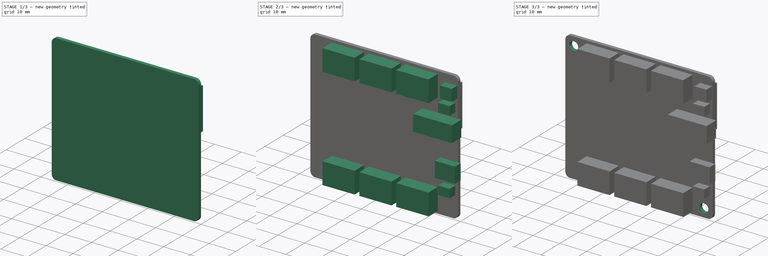
[diagram: build sequence overview — one tinted view per stage of 3, left to right]
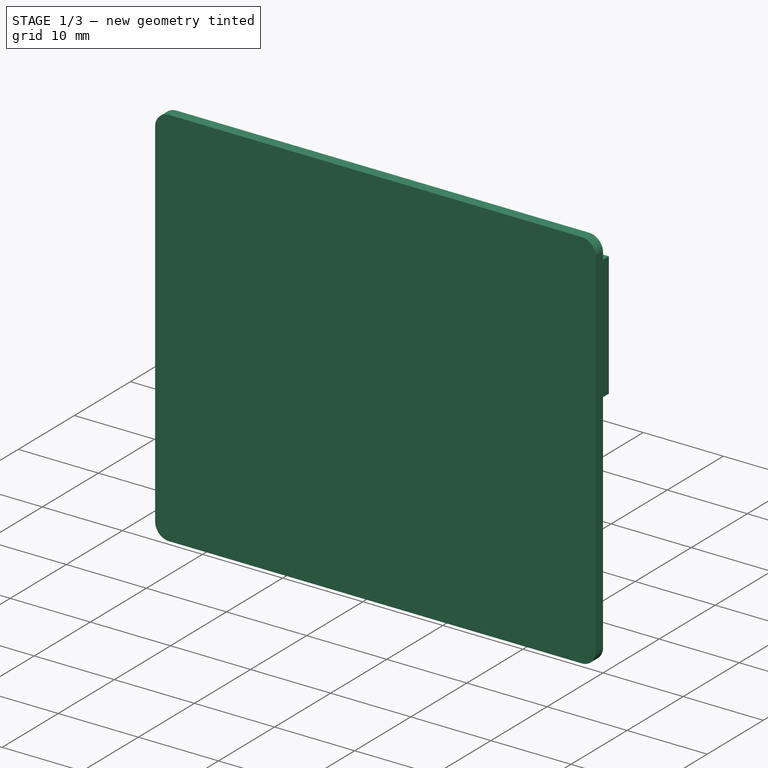
[diagram: stage 1 of 3 — iso view after this stage's code; geometry added in this stage tinted green]
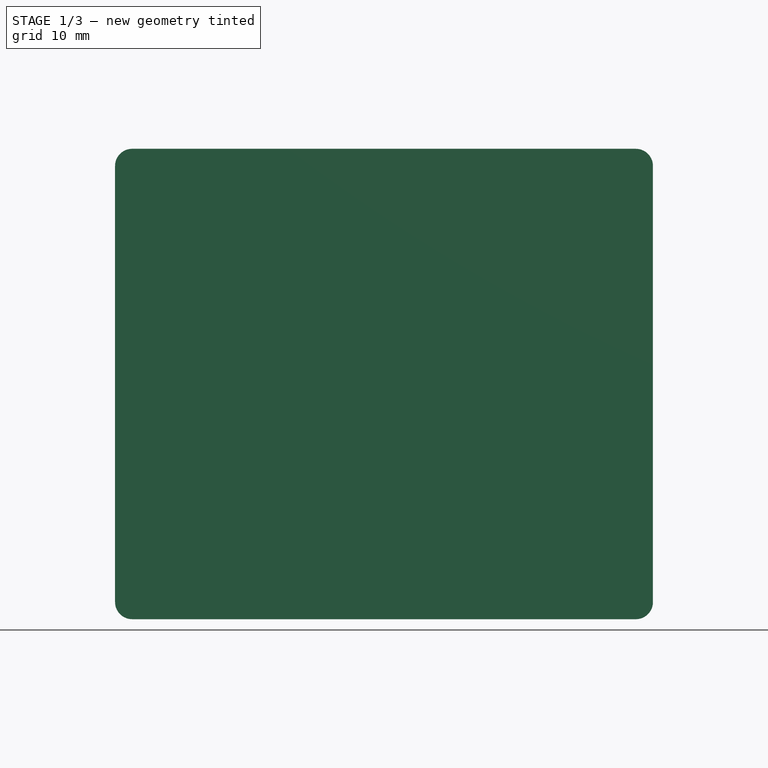
[diagram: stage 1 of 3 — front view after this stage's code; geometry added in this stage tinted green]
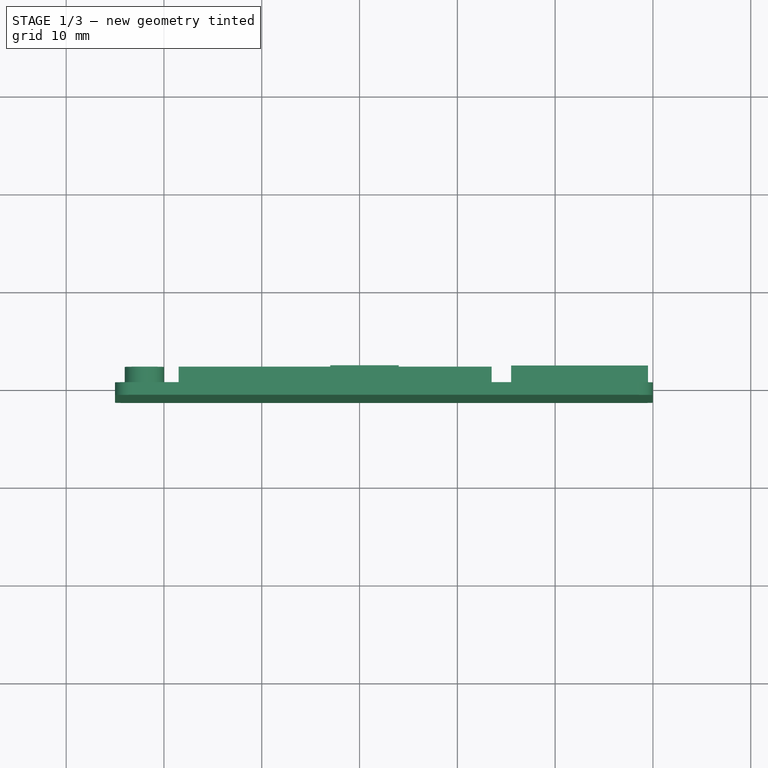
[diagram: stage 1 of 3 — top view after this stage's code; geometry added in this stage tinted green]
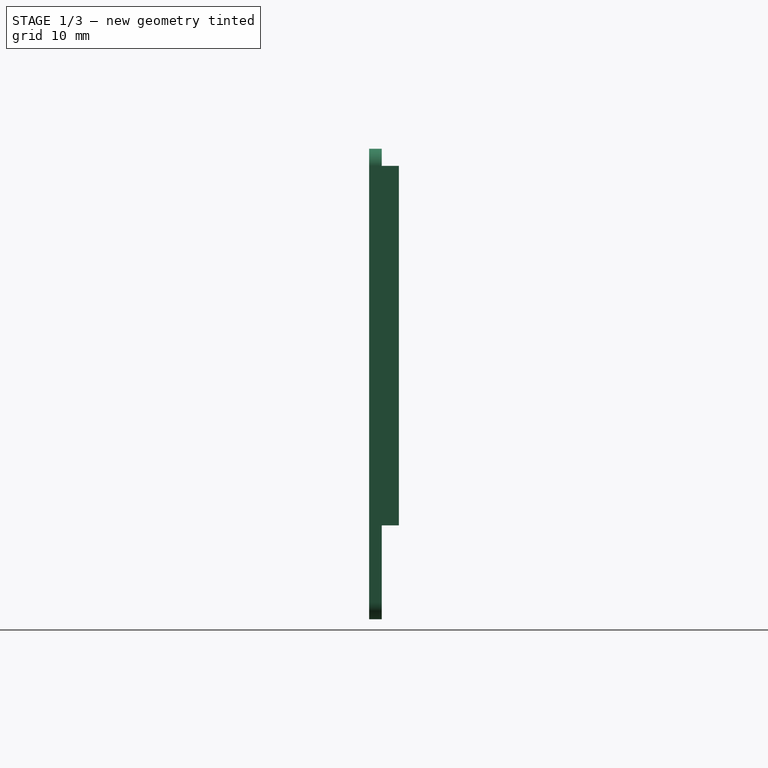
[diagram: stage 1 of 3 — right view after this stage's code; geometry added in this stage tinted green]
FCSTD DOCUMENT  (FreeCAD 0.18.1R)
Label: Wio-LTE-board
License: All rights reserved
LicenseURL: http://en.wikipedia.org/wiki/All_rights_reserved
objects: Sketcher::SketchObject×6, PartDesign::Pad×5, PartDesign::Pocket×1, PartDesign::Body×1
note: 19 computed .brp shape members not serialized (recipe doc carries the construction recipe); baked Part::Feature solids carry a one-line shape summary decoded from their .brp

FEATURE [Sketcher::SketchObject] Sketch
  MapMode = 5
  Placement = pos=(0,0,0) rot=(1,0,0;1.5708rad)
  Support = -> [XZ_Plane]
  sketch-geometry (8):
    g0: LineSegment StartX=-53.25 StartY=48.1 StartZ=0 EndX=-1.75 EndY=48.1 EndZ=0
    g1: LineSegment StartX=0 StartY=46.35 StartZ=0 EndX=0 EndY=1.75 EndZ=0
    g2: LineSegment StartX=-1.75 StartY=0 StartZ=0 EndX=-53.25 EndY=0 EndZ=0
    g3: LineSegment StartX=-55 StartY=1.75 StartZ=0 EndX=-55 EndY=46.35 EndZ=0
    g4: ArcOfCircle CenterX=-53.25 CenterY=46.35 CenterZ=0 NormalX=0 NormalY=0 NormalZ=1 AngleXU=0 Radius=1.75 StartAngle=1.5708 EndAngle=3.14159
    g5: ArcOfCircle CenterX=-1.75 CenterY=46.35 CenterZ=0 NormalX=0 NormalY=0 NormalZ=1 AngleXU=0 Radius=1.75 StartAngle=1e-15 EndAngle=1.5708
    g6: ArcOfCircle CenterX=-53.25 CenterY=1.75 CenterZ=0 NormalX=0 NormalY=0 NormalZ=1 AngleXU=0 Radius=1.75 StartAngle=3.14159 EndAngle=4.71239
    g7: ArcOfCircle CenterX=-1.75 CenterY=1.75 CenterZ=0 NormalX=0 NormalY=0 NormalZ=1 AngleXU=0 Radius=1.75 StartAngle=4.71239 EndAngle=6.28319
  constraints (20):
    c: Horizontal(g0)
    c: Horizontal(g2)
    c: Vertical(g1)
    c: Vertical(g3)
    c: Tangent(g0,g4) = 1.5708
    c: Tangent(g3,g4) = 1.5708
    c: Tangent(g0,g5) = 1.5708
    c: Tangent(g1,g5) = 1.5708
    c: Tangent(g2,g6) = 1.5708
    c: Tangent(g3,g6) = 1.5708
    c: Tangent(g1,g7) = 1.5708
    c: Tangent(g2,g7) = 1.5708
    c: Radius(g4) = 1.75
    c: Equal(g4,g5)
    c: Equal(g4,g6)
    c: Equal(g4,g7)
    c: DistanceY(g2,g0) = 48.1
    c: PointOnObject(g-1,g2)
    c: PointOnObject(g-1,g1)
    c: DistanceX(g3,g1) = 55
FEATURE [PartDesign::Pad] Pad
  Length = 1.3
  Length2 = 100
  Placement = pos=(0,0,0) rot=(1,0,0;1.5708rad)
  Profile = -> Sketch
  Type = 0
FEATURE [Sketcher::SketchObject] Sketch001
  ExternalGeometry = -> [Pad]
  MapMode = 5
  Placement = pos=(0,0,0) rot=(-1,0,0;1.5708rad)
  Support = -> [Pad]
  sketch-geometry (15):
    g0: LineSegment StartX=-16.5 StartY=-38.6 StartZ=0 EndX=-48.5 EndY=-38.6 EndZ=0
    g1: LineSegment StartX=-48.5 StartY=-38.6 StartZ=0 EndX=-48.5 EndY=-9.6 EndZ=0
    g2: LineSegment StartX=-48.5 StartY=-9.6 StartZ=0 EndX=-16.5 EndY=-9.6 EndZ=0
    g3: LineSegment StartX=-16.5 StartY=-9.6 StartZ=0 EndX=-16.5 EndY=-38.6 EndZ=0
    g4: LineSegment StartX=-25.99 StartY=-46.36 StartZ=0 EndX=-32.99 EndY=-46.36 EndZ=0
    g5: LineSegment StartX=-32.99 StartY=-46.36 StartZ=0 EndX=-32.99 EndY=-41.36 EndZ=0
    g6: LineSegment StartX=-32.99 StartY=-41.36 StartZ=0 EndX=-25.99 EndY=-41.36 EndZ=0
    g7: LineSegment StartX=-25.99 StartY=-41.36 StartZ=0 EndX=-25.99 EndY=-46.36 EndZ=0
    g8: Circle CenterX=-52 CenterY=-24.1 CenterZ=0 NormalX=0 NormalY=0 NormalZ=1 AngleXU=0 Radius=2.01169
    g9: Circle CenterX=-52 CenterY=-11.6 CenterZ=0 NormalX=0 NormalY=0 NormalZ=1 AngleXU=0 Radius=2.01169
    g10: Circle CenterX=-52 CenterY=-36.6 CenterZ=0 NormalX=0 NormalY=0 NormalZ=1 AngleXU=0 Radius=2.01169
    g11: LineSegment StartX=-0.5 StartY=-45.1 StartZ=0 EndX=-14.5 EndY=-45.1 EndZ=0
    g12: LineSegment StartX=-14.5 StartY=-45.1 StartZ=0 EndX=-14.5 EndY=-29.6 EndZ=0
    g13: LineSegment StartX=-14.5 StartY=-29.6 StartZ=0 EndX=-0.5 EndY=-29.6 EndZ=0
    g14: LineSegment StartX=-0.5 StartY=-29.6 StartZ=0 EndX=-0.5 EndY=-45.1 EndZ=0
  constraints (42):
    c: Coincident(g0,g1)
    c: Coincident(g1,g2)
    c: Coincident(g2,g3)
    c: Coincident(g3,g0)
    c: Horizontal(g0)
    c: Horizontal(g2)
    c: Vertical(g1)
    c: Vertical(g3)
    c: DistanceY(g3,g3) = 29
    c: Distance(g0) = 32
    c: DistanceY(g-3,g0) = 9.5
    c: DistanceX(g-5,g1) = 6.5
    c: Coincident(g4,g5)
    c: Coincident(g5,g6)
    c: Coincident(g6,g7)
    c: Coincident(g7,g4)
    c: Horizontal(g4)
    c: Horizontal(g6)
    c: Vertical(g5)
    c: Vertical(g7)
    c: Distance(g5) = 5
    c: Distance(g4) = 7
    c: DistanceY(g5,g0) = 2.76
    c: DistanceX(g6,g0) = 9.49
    c: DistanceX(g10,g0) = 3.5  'd1'
    c: DistanceX(g8,g0) = 3.5
    c: DistanceX(g9,g1) = 3.5
    c: DistanceY(g9,g1) = 2
    c: DistanceY(g0,g10) = 2
    c: DistanceY(g10,g8) = 12.5
    c: Coincident(g11,g12)
    c: Coincident(g12,g13)
    c: Coincident(g13,g14)
    c: Coincident(g14,g11)
    c: Horizontal(g11)
    c: Horizontal(g13)
    c: Vertical(g12)
    c: Vertical(g14)
    c: Distance(g12) = 15.5
    c: Distance(g11) = 14
    c: DistanceY(g-3,g11) = 3
    c: DistanceX(g11,g-4) = 0.5
FEATURE [PartDesign::Pad] Pad001
  BaseFeature = -> Pad
  Length = 1.75
  Length2 = 100
  Placement = pos=(0,0,0) rot=(1,0,0;1.5708rad)
  Profile = -> Sketch001
  Type = 0
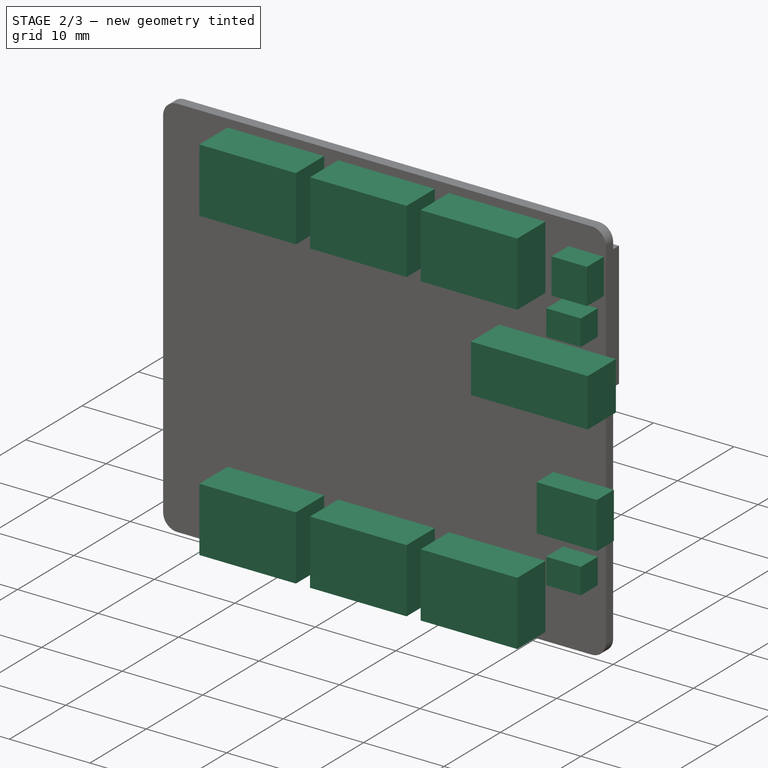
[diagram: stage 2 of 3 — iso view after this stage's code; geometry added in this stage tinted green]
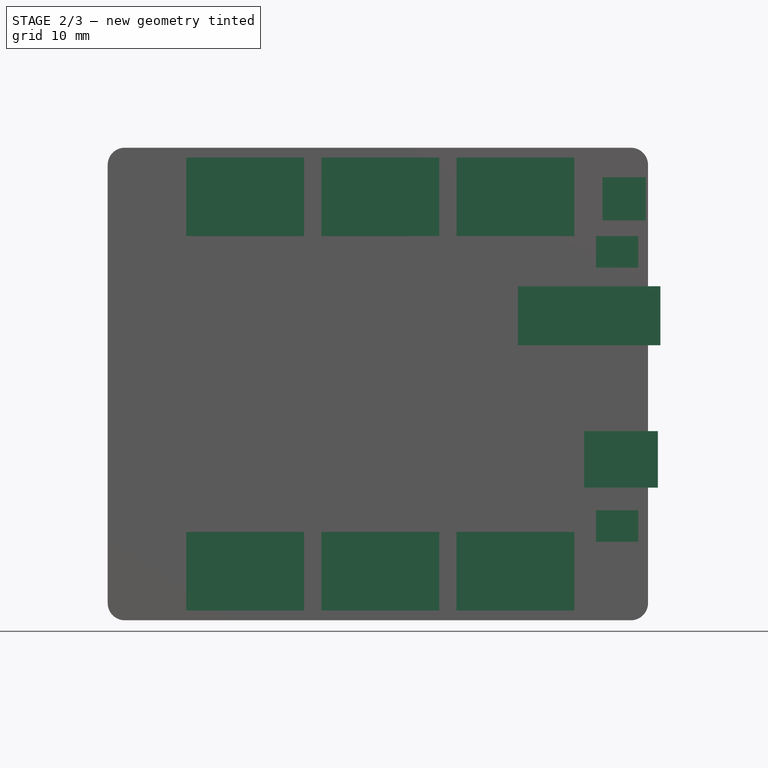
[diagram: stage 2 of 3 — front view after this stage's code; geometry added in this stage tinted green]
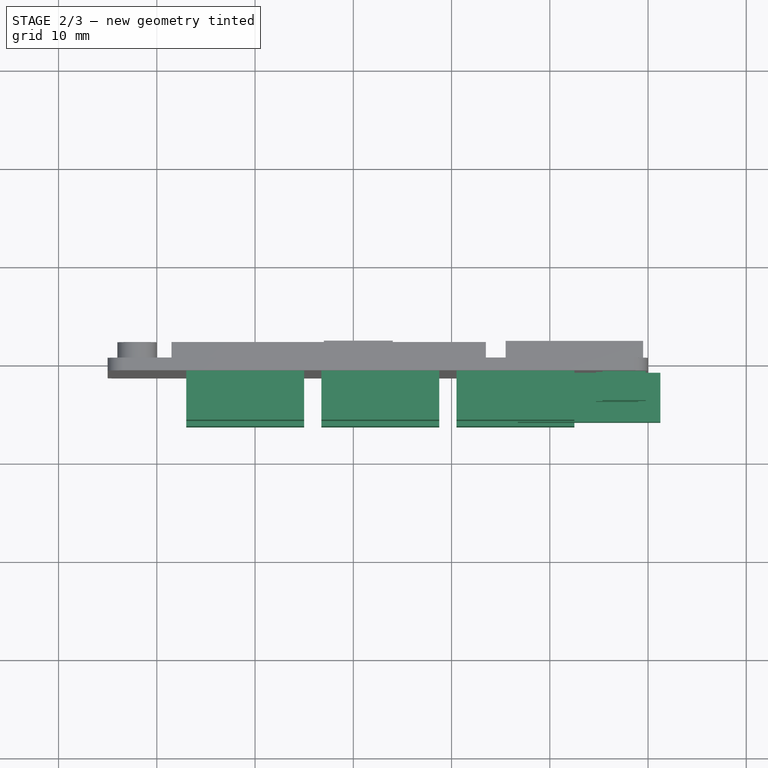
[diagram: stage 2 of 3 — top view after this stage's code; geometry added in this stage tinted green]
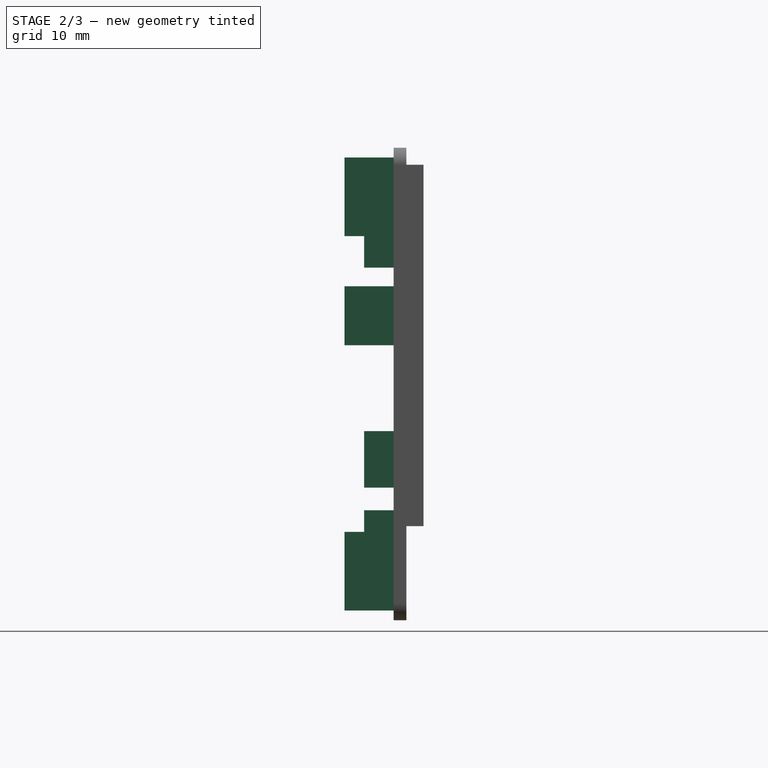
[diagram: stage 2 of 3 — right view after this stage's code; geometry added in this stage tinted green]
FEATURE [Sketcher::SketchObject] Sketch002
  ExternalGeometry = -> [Pad001]
  MapMode = 5
  Placement = pos=(0,-1.3,-3e-16) rot=(1,0,0;1.5708rad)
  Support = -> [Pad001]
  sketch-geometry (28):
    g0: LineSegment StartX=-47 StartY=47.1 StartZ=0 EndX=-35 EndY=47.1 EndZ=0
    g1: LineSegment StartX=-35 StartY=47.1 StartZ=0 EndX=-35 EndY=39.1 EndZ=0
    g2: LineSegment StartX=-35 StartY=39.1 StartZ=0 EndX=-47 EndY=39.1 EndZ=0
    g3: LineSegment StartX=-47 StartY=39.1 StartZ=0 EndX=-47 EndY=47.1 EndZ=0
    g4: LineSegment StartX=-33.25 StartY=47.1 StartZ=0 EndX=-21.25 EndY=47.1 EndZ=0
    g5: LineSegment StartX=-21.25 StartY=47.1 StartZ=0 EndX=-21.25 EndY=39.1 EndZ=0
    g6: LineSegment StartX=-21.25 StartY=39.1 StartZ=0 EndX=-33.25 EndY=39.1 EndZ=0
    g7: LineSegment StartX=-33.25 StartY=39.1 StartZ=0 EndX=-33.25 EndY=47.1 EndZ=0
    g8: LineSegment StartX=-19.5 StartY=47.1 StartZ=0 EndX=-7.5 EndY=47.1 EndZ=0
    g9: LineSegment StartX=-7.5 StartY=47.1 StartZ=0 EndX=-7.5 EndY=39.1 EndZ=0
    g10: LineSegment StartX=-7.5 StartY=39.1 StartZ=0 EndX=-19.5 EndY=39.1 EndZ=0
    g11: LineSegment StartX=-19.5 StartY=39.1 StartZ=0 EndX=-19.5 EndY=47.1 EndZ=0
    g12: LineSegment StartX=-47 StartY=9 StartZ=0 EndX=-35 EndY=9 EndZ=0
    g13: LineSegment StartX=-35 StartY=9 StartZ=0 EndX=-35 EndY=1 EndZ=0
    g14: LineSegment StartX=-35 StartY=1 StartZ=0 EndX=-47 EndY=1 EndZ=0
    g15: LineSegment StartX=-47 StartY=1 StartZ=0 EndX=-47 EndY=9 EndZ=0
    g16: LineSegment StartX=-33.25 StartY=9 StartZ=0 EndX=-21.25 EndY=9 EndZ=0
    g17: LineSegment StartX=-21.25 StartY=9 StartZ=0 EndX=-21.25 EndY=1 EndZ=0
    g18: LineSegment StartX=-21.25 StartY=1 StartZ=0 EndX=-33.25 EndY=1 EndZ=0
    g19: LineSegment StartX=-33.25 StartY=1 StartZ=0 EndX=-33.25 EndY=9 EndZ=0
    g20: LineSegment StartX=-19.5 StartY=9 StartZ=0 EndX=-7.5 EndY=9 EndZ=0
    g21: LineSegment StartX=-7.5 StartY=9 StartZ=0 EndX=-7.5 EndY=1 EndZ=0
    g22: LineSegment StartX=-7.5 StartY=1 StartZ=0 EndX=-19.5 EndY=1 EndZ=0
    g23: LineSegment StartX=-19.5 StartY=1 StartZ=0 EndX=-19.5 EndY=9 EndZ=0
    g24: LineSegment StartX=-13.25 StartY=33.9958 StartZ=0 EndX=1.25 EndY=33.9958 EndZ=0
    g25: LineSegment StartX=1.25 StartY=33.9958 StartZ=0 EndX=1.25 EndY=27.9958 EndZ=0
    g26: LineSegment StartX=1.25 StartY=27.9958 StartZ=0 EndX=-13.25 EndY=27.9958 EndZ=0
    g27: LineSegment StartX=-13.25 StartY=27.9958 StartZ=0 EndX=-13.25 EndY=33.9958 EndZ=0
  constraints (83):
    c: Coincident(g0,g1)
    c: Coincident(g1,g2)
    c: Coincident(g2,g3)
    c: Coincident(g3,g0)
    c: Horizontal(g0)
    c: Horizontal(g2)
    c: Vertical(g1)
    c: Vertical(g3)
    c: Distance(g0) = 12
    c: Distance(g1) = 8
    c: DistanceY(g0,g-3) = 1
    c: Coincident(g4,g5)
    c: Coincident(g5,g6)
    c: Coincident(g6,g7)
    c: Coincident(g7,g4)
    c: Horizontal(g4)
    c: Horizontal(g6)
    c: Vertical(g5)
    c: Vertical(g7)
    c: Equal(g0,g4) = 12
    c: Equal(g1,g5) = 8
    c: Coincident(g8,g9)
    c: Coincident(g9,g10)
    c: Coincident(g10,g11)
    c: Coincident(g11,g8)
    c: Horizontal(g8)
    c: Horizontal(g10)
    c: Vertical(g9)
    c: Vertical(g11)
    c: DistanceY(g4,g-3) = 1
    c: DistanceY(g8,g-3) = 1
    c: DistanceX(g0,g4) = 1.75
    c: DistanceX(g4,g8) = 1.75
    c: Distance(g10) = 12
    c: Distance(g9) = 8
    c: DistanceX(g8,g-4) = 7.5
    c: Coincident(g12,g13)
    c: Coincident(g13,g14)
    c: Coincident(g14,g15)
    c: Coincident(g15,g12)
    c: Horizontal(g12)
    c: Horizontal(g14)
    c: Vertical(g13)
    c: Vertical(g15)
    c: Equal(g0,g12) = 12
    c: Equal(g1,g13) = 8
    c: Coincident(g16,g17)
    c: Coincident(g17,g18)
    c: Coincident(g18,g19)
    c: Coincident(g19,g16)
    c: Horizontal(g16)
    c: Horizontal(g18)
    c: Vertical(g17)
    c: Vertical(g19)
    c: Equal(g12,g16) = 12
    c: Equal(g13,g17) = 8
    c: Coincident(g20,g21)
    c: Coincident(g21,g22)
    c: Coincident(g22,g23)
    c: Coincident(g23,g20)
    c: Horizontal(g20)
    c: Horizontal(g22)
    c: Vertical(g21)
    c: Vertical(g23)
    c: DistanceX(g12,g16) = 1.75
    c: DistanceX(g16,g20) = 1.75
    c: Equal(g10,g22) = 12
    c: Equal(g9,g21) = 8
    c: DistanceY(g-6,g18) = 1
    c: DistanceY(g-6,g14) = 1
    c: DistanceY(g-6,g21) = 1
    c: DistanceX(g21,g-4) = 7.5
    c: Coincident(g24,g25)
    c: Coincident(g25,g26)
    c: Coincident(g26,g27)
    c: Coincident(g27,g24)
    c: Horizontal(g24)
    c: Horizontal(g26)
    c: Vertical(g25)
    c: Vertical(g27)
    c: Distance(g26) = 14.5
    c: Distance(g27) = 6
    c: DistanceX(g-4,g24) = 1.25
FEATURE [PartDesign::Pad] Pad002
  BaseFeature = -> Pad001
  Length = 5
  Length2 = 100
  Placement = pos=(0,0,0) rot=(1,0,0;1.5708rad)
  Profile = -> Sketch002
  Type = 0
FEATURE [Sketcher::SketchObject] Sketch003
  ExternalGeometry = -> [Pad002]
  MapMode = 5
  Placement = pos=(0,-1.3,-3e-16) rot=(1,0,0;1.5708rad)
  Support = -> [Pad002]
  sketch-geometry (16):
    g0: LineSegment StartX=-4.63788 StartY=45.1 StartZ=0 EndX=-0.237883 EndY=45.1 EndZ=0
    g1: LineSegment StartX=-0.237883 StartY=45.1 StartZ=0 EndX=-0.237883 EndY=40.7 EndZ=0
    g2: LineSegment StartX=-0.237883 StartY=40.7 StartZ=0 EndX=-4.63788 EndY=40.7 EndZ=0
    g3: LineSegment StartX=-4.63788 StartY=40.7 StartZ=0 EndX=-4.63788 EndY=45.1 EndZ=0
    g4: LineSegment StartX=-5.3 StartY=39.1 StartZ=0 EndX=-1 EndY=39.1 EndZ=0
    g5: LineSegment StartX=-1 StartY=39.1 StartZ=0 EndX=-1 EndY=35.9 EndZ=0
    g6: LineSegment StartX=-1 StartY=35.9 StartZ=0 EndX=-5.3 EndY=35.9 EndZ=0
    g7: LineSegment StartX=-5.3 StartY=35.9 StartZ=0 EndX=-5.3 EndY=39.1 EndZ=0
    g8: LineSegment StartX=-6.5 StartY=19.25 StartZ=0 EndX=1 EndY=19.25 EndZ=0
    g9: LineSegment StartX=1 StartY=19.25 StartZ=0 EndX=1 EndY=13.5 EndZ=0
    g10: LineSegment StartX=1 StartY=13.5 StartZ=0 EndX=-6.5 EndY=13.5 EndZ=0
    g11: LineSegment StartX=-6.5 StartY=13.5 StartZ=0 EndX=-6.5 EndY=19.25 EndZ=0
    g12: LineSegment StartX=-5.3 StartY=11.2 StartZ=0 EndX=-1 EndY=11.2 EndZ=0
    g13: LineSegment StartX=-1 StartY=11.2 StartZ=0 EndX=-1 EndY=8 EndZ=0
    g14: LineSegment StartX=-1 StartY=8 StartZ=0 EndX=-5.3 EndY=8 EndZ=0
    g15: LineSegment StartX=-5.3 StartY=8 StartZ=0 EndX=-5.3 EndY=11.2 EndZ=0
  constraints (47):
    c: Coincident(g0,g1)
    c: Coincident(g1,g2)
    c: Coincident(g2,g3)
    c: Coincident(g3,g0)
    c: Horizontal(g0)
    c: Horizontal(g2)
    c: Vertical(g1)
    c: Vertical(g3)
    c: Coincident(g4,g5)
    c: Coincident(g5,g6)
    c: Coincident(g6,g7)
    c: Coincident(g7,g4)
    c: Horizontal(g4)
    c: Horizontal(g6)
    c: Vertical(g5)
    c: Vertical(g7)
    c: Coincident(g8,g9)
    c: Coincident(g9,g10)
    c: Coincident(g10,g11)
    c: Coincident(g11,g8)
    c: Horizontal(g8)
    c: Horizontal(g10)
    c: Vertical(g9)
    c: Vertical(g11)
    c: Coincident(g12,g13)
    c: Coincident(g13,g14)
    c: Coincident(g14,g15)
    c: Coincident(g15,g12)
    c: Horizontal(g12)
    c: Horizontal(g14)
    c: Vertical(g13)
    c: Vertical(g15)
    c: Distance(g0) = 4.4
    c: Distance(g1) = 4.4
    c: Distance(g4) = 4.3
    c: Distance(g7) = 3.2
    c: Distance(g12) = 4.3
    c: Distance(g15) = 3.2
    c: Distance(g8) = 7.5
    c: Distance(g11) = 5.75
    c: DistanceX(g-1,g9) = 1
    c: DistanceX(g13,g-1) = 1
    c: DistanceX(g4,g-1) = 1
    c: DistanceY(g-1,g13) = 8
    c: DistanceY(g-1,g9) = 13.5
    c: DistanceY(g4,g-3) = 9
    c: DistanceY(g0,g-3) = 3
FEATURE [PartDesign::Pad] Pad003
  BaseFeature = -> Pad002
  Length = 3
  Length2 = 100
  Placement = pos=(0,0,0) rot=(1,0,0;1.5708rad)
  Profile = -> Sketch003
  Type = 0
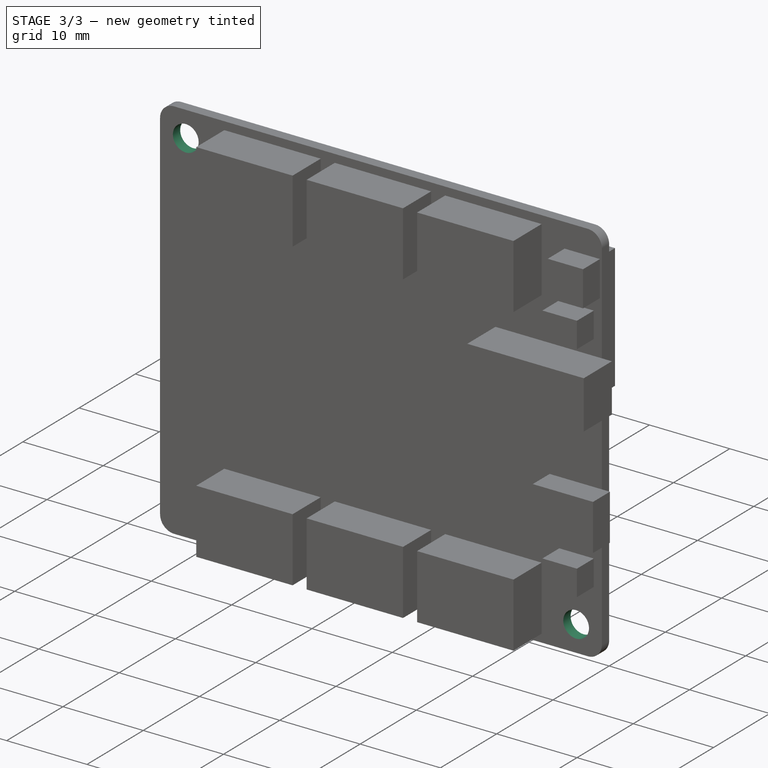
[diagram: stage 3 of 3 — iso view after this stage's code; geometry added in this stage tinted green]
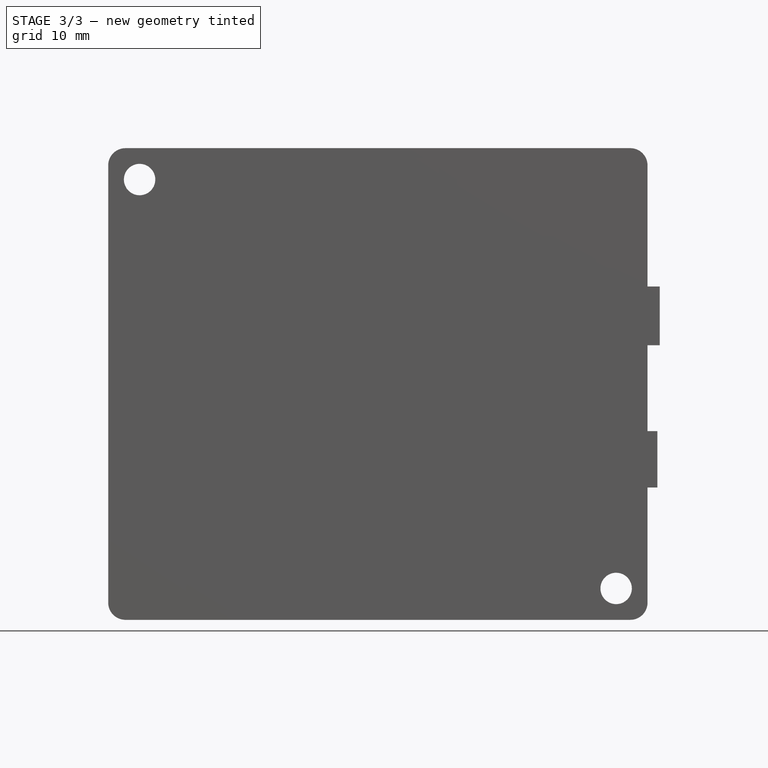
[diagram: stage 3 of 3 — front view after this stage's code; geometry added in this stage tinted green]
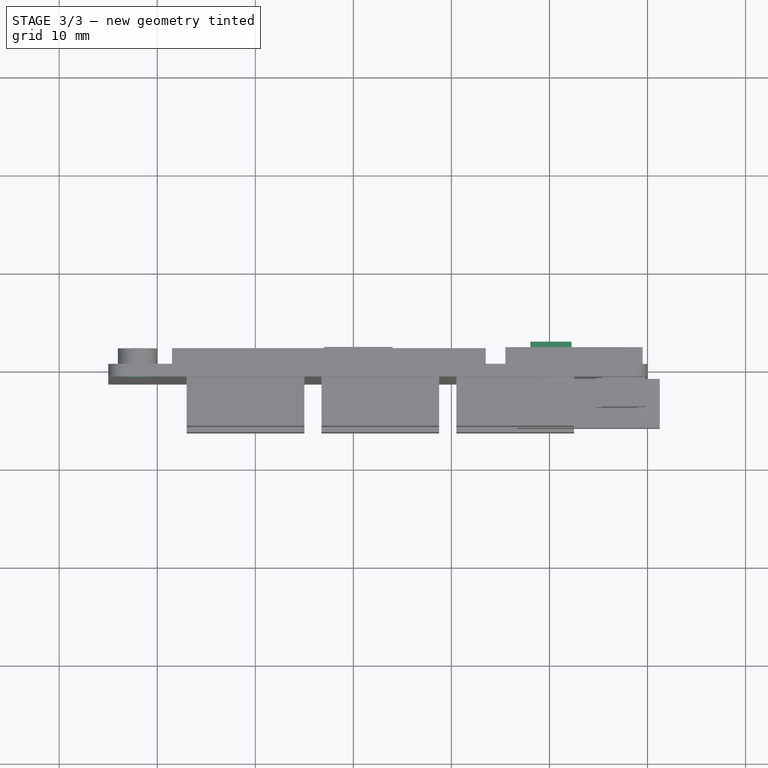
[diagram: stage 3 of 3 — top view after this stage's code; geometry added in this stage tinted green]
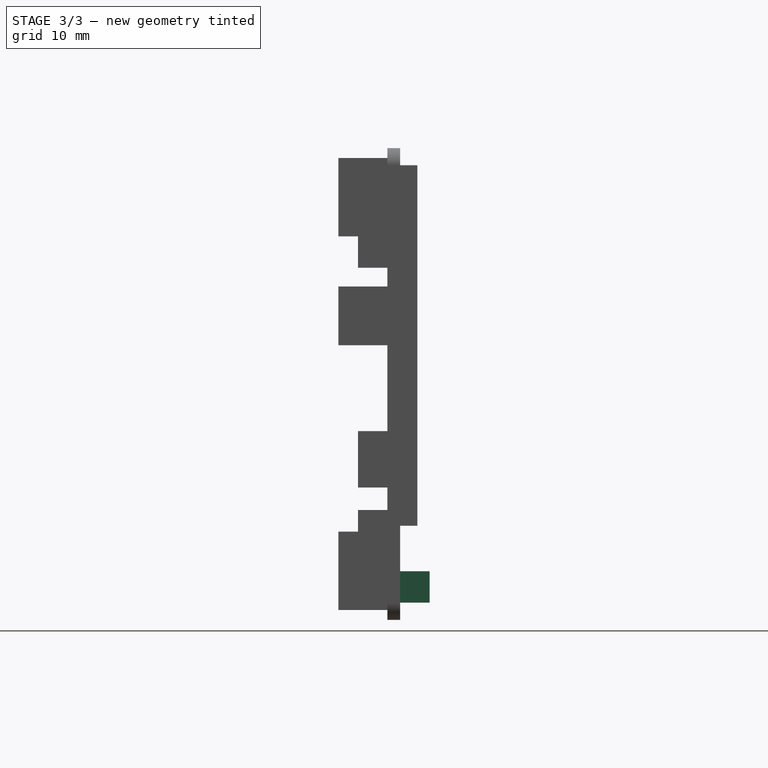
[diagram: stage 3 of 3 — right view after this stage's code; geometry added in this stage tinted green]
FEATURE [Sketcher::SketchObject] Sketch004
  ExternalGeometry = -> [Pad003]
  MapMode = 5
  Placement = pos=(0,0,0) rot=(-1,0,0;1.5708rad)
  Support = -> [Pad003]
  sketch-geometry (4):
    g0: LineSegment StartX=-7.75 StartY=-4.95 StartZ=0 EndX=-11.95 EndY=-4.95 EndZ=0
    g1: LineSegment StartX=-11.95 StartY=-4.95 StartZ=0 EndX=-11.95 EndY=-1.75 EndZ=0
    g2: LineSegment StartX=-11.95 StartY=-1.75 StartZ=0 EndX=-7.75 EndY=-1.75 EndZ=0
    g3: LineSegment StartX=-7.75 StartY=-1.75 StartZ=0 EndX=-7.75 EndY=-4.95 EndZ=0
  constraints (12):
    c: Coincident(g0,g1)
    c: Coincident(g1,g2)
    c: Coincident(g2,g3)
    c: Coincident(g3,g0)
    c: Horizontal(g0)
    c: Horizontal(g2)
    c: Vertical(g1)
    c: Vertical(g3)
    c: Distance(g0) = 4.2
    c: Distance(g1) = 3.2
    c: DistanceY(g2,g-3) = 1.75
    c: DistanceX(g2,g-1) = 7.75
FEATURE [PartDesign::Pad] Pad004
  BaseFeature = -> Pad003
  Length = 3
  Length2 = 100
  Placement = pos=(0,0,0) rot=(1,0,0;1.5708rad)
  Profile = -> Sketch004
  Type = 0
FEATURE [Sketcher::SketchObject] Sketch005
  ExternalGeometry = -> [Pad004]
  MapMode = 5
  Placement = pos=(0,0,0) rot=(-1,0,0;1.5708rad)
  Support = -> [Pad004]
  sketch-geometry (2):
    g0: Circle CenterX=-3.2 CenterY=-3.2 CenterZ=0 NormalX=0 NormalY=0 NormalZ=1 AngleXU=0 Radius=1.6
    g1: Circle CenterX=-51.8 CenterY=-44.9 CenterZ=0 NormalX=0 NormalY=0 NormalZ=1 AngleXU=0 Radius=1.6
  constraints (6):
    c: Diameter(g0) = 3.2
    c: Equal(g0,g1)
    c: DistanceX(g-5,g1) = 3.2
    c: DistanceY(g-3,g1) = 3.2
    c: DistanceY(g0,g-4) = 3.2
    c: DistanceX(g0,g-6) = 3.2
FEATURE [PartDesign::Pocket] Pocket
  BaseFeature = -> Pad004
  Length = 5
  Length2 = 100
  Placement = pos=(0,0,0) rot=(1,0,0;1.5708rad)
  Profile = -> Sketch005
  Type = 1
FEATURE [PartDesign::Body] Body
  Group = -> [Sketch,Pad,Sketch001,Pad001,Sketch002,Pad002,Sketch003,Pad003,Sketch004,Pad004,Sketch005,Pocket]
  Origin = -> Origin
  Tip = -> Pocket
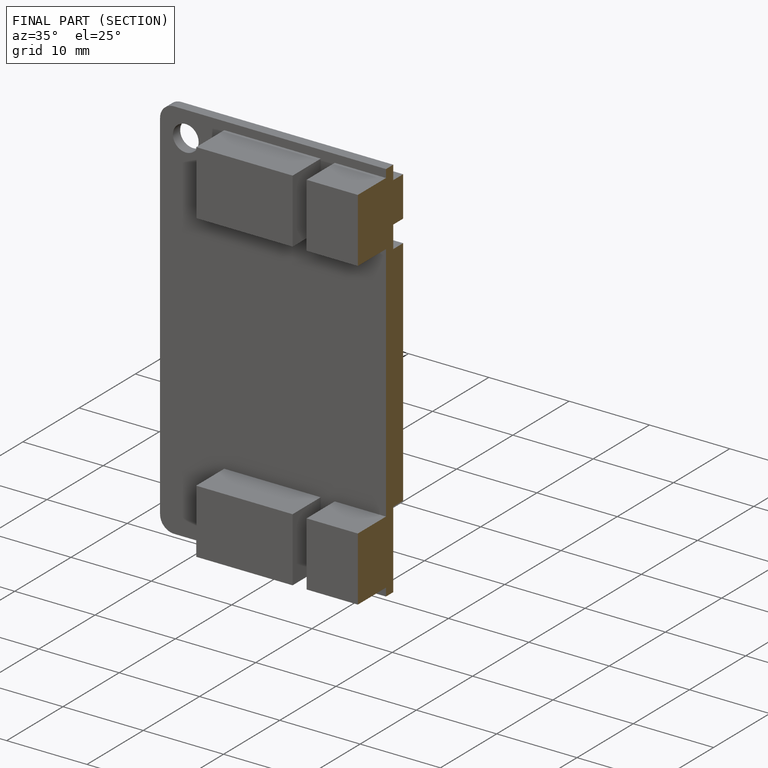
[diagram: finished part — half-section view (interior)]
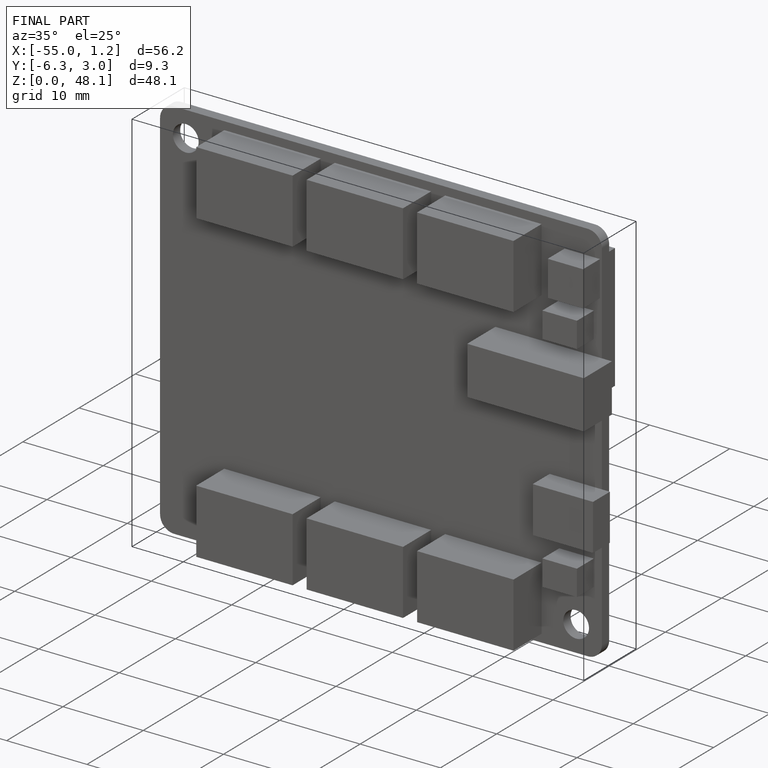
[diagram: finished part — iso view with bounding-box wireframe]
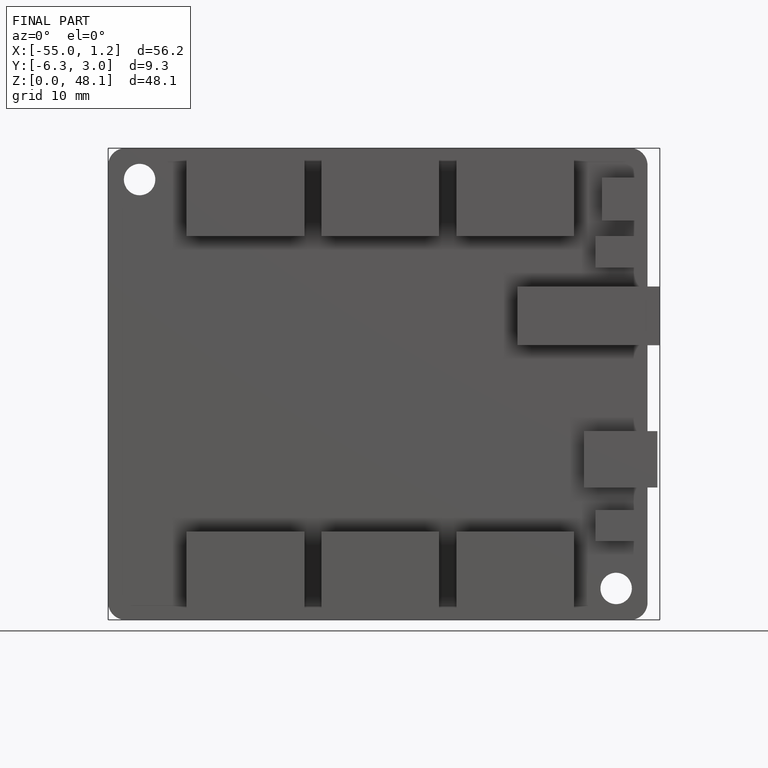
[diagram: finished part — front view with bounding-box wireframe]
